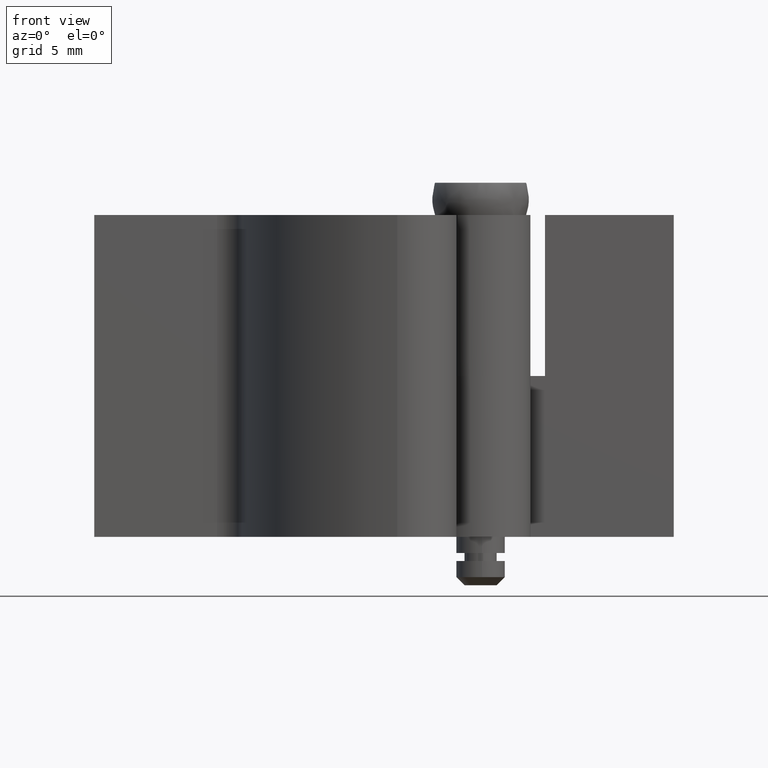
[diagram: clean part render]
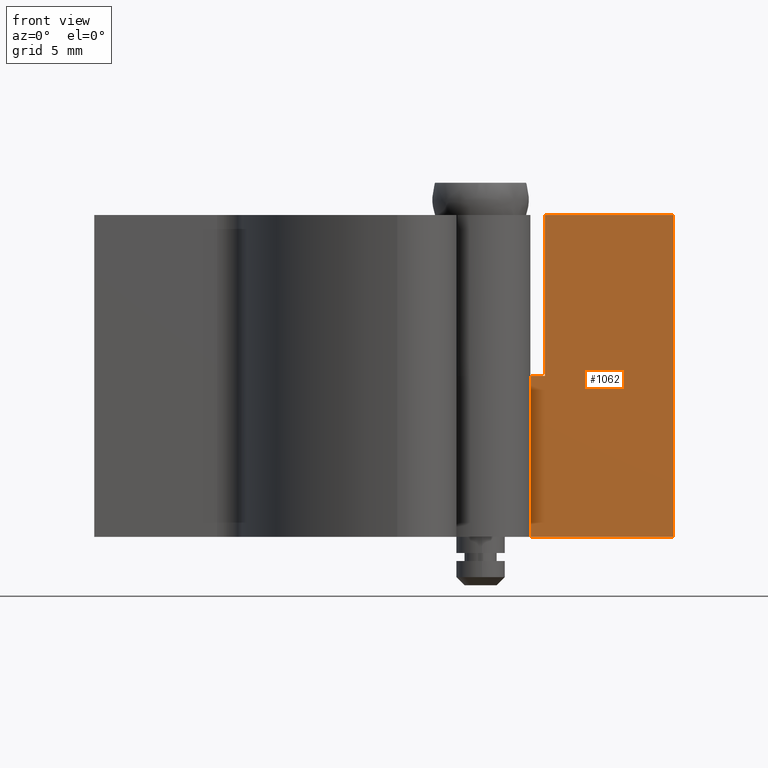
[diagram: same view with one face highlighted and labeled with its STEP entity id]
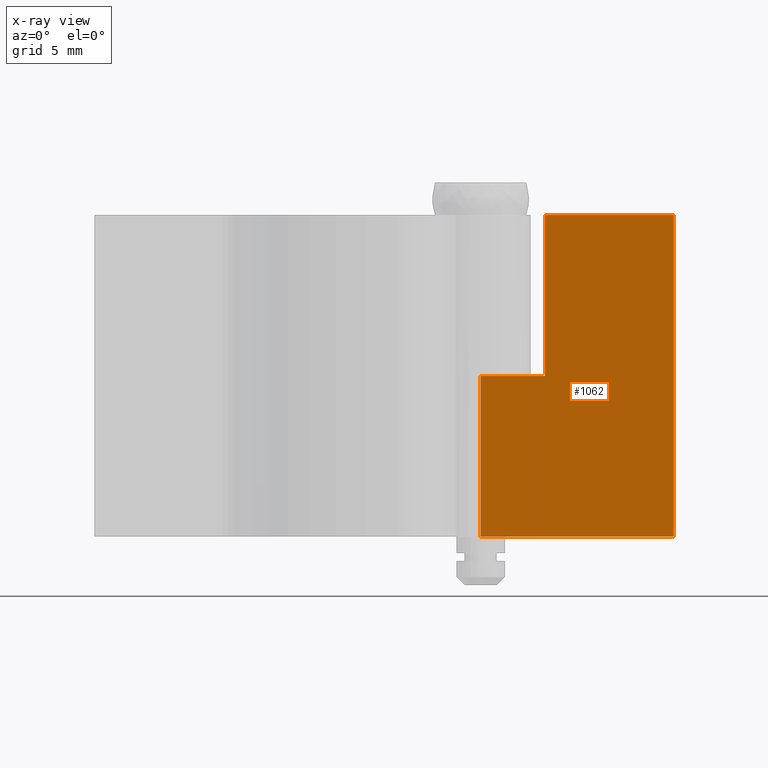
[diagram: x-ray of the same camera — body ghosted, the highlighted face saturated]
A machine part, front view. The second image highlights one B-rep face of the part: STEP entity #1062.
The next image is the same camera in x-ray: the body ghosted, the highlighted face saturated — about 0% of this face is hidden behind the body in this view.
In plain terms, the highlighted face is a freeform B-spline surface patch.
Its self-contained STEP definition (entity closure, byte-faithful):
#834=CARTESIAN_POINT('',(4.0,1.499999999999946,23.0));
#835=VERTEX_POINT('',#834);
#836=CARTESIAN_POINT('',(4.0,1.499999999999946,13.0));
#837=VERTEX_POINT('',#836);
#838=CARTESIAN_POINT('',(4.0,1.499999999999946,23.0));
#839=CARTESIAN_POINT('',(4.0,1.499999999999946,13.0));
#840=QUASI_UNIFORM_CURVE('',1,(#838,#839),.UNSPECIFIED.,.F.,.U.);
#841=EDGE_CURVE('',#835,#837,#840,.T.);
#900=CARTESIAN_POINT('',(1.240420E-015,1.500000000000000,13.0));
#901=VERTEX_POINT('',#900);
#921=CARTESIAN_POINT('',(4.0,1.499999999999946,13.0));
#922=CARTESIAN_POINT('',(1.240420E-015,1.500000000000000,13.0));
#923=QUASI_UNIFORM_CURVE('',1,(#921,#922),.UNSPECIFIED.,.F.,.U.);
#924=EDGE_CURVE('',#837,#901,#923,.T.);
#940=CARTESIAN_POINT('',(12.0,1.500000000000000,3.0));
#941=VERTEX_POINT('',#940);
#949=CARTESIAN_POINT('',(1.240422E-015,1.500000000000000,3.0));
#950=VERTEX_POINT('',#949);
#951=CARTESIAN_POINT('',(1.240422E-015,1.500000000000000,3.0));
#952=CARTESIAN_POINT('',(12.0,1.500000000000000,3.0));
#953=QUASI_UNIFORM_CURVE('',1,(#951,#952),.UNSPECIFIED.,.F.,.U.);
#954=EDGE_CURVE('',#950,#941,#953,.T.);
#1018=CARTESIAN_POINT('',(12.0,1.500000000000000,23.0));
#1019=VERTEX_POINT('',#1018);
#1020=CARTESIAN_POINT('',(4.0,1.499999999999946,23.0));
#1021=CARTESIAN_POINT('',(12.0,1.500000000000000,23.0));
#1022=QUASI_UNIFORM_CURVE('',1,(#1020,#1021),.UNSPECIFIED.,.F.,.U.);
#1023=EDGE_CURVE('',#835,#1019,#1022,.T.);
#1041=CARTESIAN_POINT('',(-0.599399976741671,1.500000000000000,23.998999961236120));
#1042=CARTESIAN_POINT('',(-0.599399976741671,1.500000000000000,2.000999502322078));
#1043=CARTESIAN_POINT('',(12.599400298606760,1.500000000000000,23.998999961236120));
#1044=CARTESIAN_POINT('',(12.599400298606760,1.500000000000000,2.000999502322078));
#1045=B_SPLINE_SURFACE_WITH_KNOTS('',1,1,((#1041,#1043),(#1042,#1044)),.UNSPECIFIED.,.F.,.F.,.U.,(2,2),(2,2),(0.0,21.998000458914049),(0.0,13.198800275348431),.UNSPECIFIED.);
#1046=ORIENTED_EDGE('',*,*,#924,.T.);
#1047=CARTESIAN_POINT('',(1.240420E-015,1.500000000000000,13.0));
#1048=CARTESIAN_POINT('',(1.240422E-015,1.500000000000000,3.0));
#1049=QUASI_UNIFORM_CURVE('',1,(#1047,#1048),.UNSPECIFIED.,.F.,.U.);
#1050=EDGE_CURVE('',#901,#950,#1049,.T.);
#1051=ORIENTED_EDGE('',*,*,#1050,.T.);
#1052=ORIENTED_EDGE('',*,*,#954,.T.);
#1053=CARTESIAN_POINT('',(12.0,1.500000000000000,23.0));
#1054=CARTESIAN_POINT('',(12.0,1.500000000000000,3.0));
#1055=QUASI_UNIFORM_CURVE('',1,(#1053,#1054),.UNSPECIFIED.,.F.,.U.);
#1056=EDGE_CURVE('',#1019,#941,#1055,.T.);
#1057=ORIENTED_EDGE('',*,*,#1056,.F.);
#1058=ORIENTED_EDGE('',*,*,#1023,.F.);
#1059=ORIENTED_EDGE('',*,*,#841,.T.);
#1060=EDGE_LOOP('',(#1046,#1051,#1052,#1057,#1058,#1059));
#1061=FACE_OUTER_BOUND('',#1060,.T.);
#1062=ADVANCED_FACE('',(#1061),#1045,.T.);